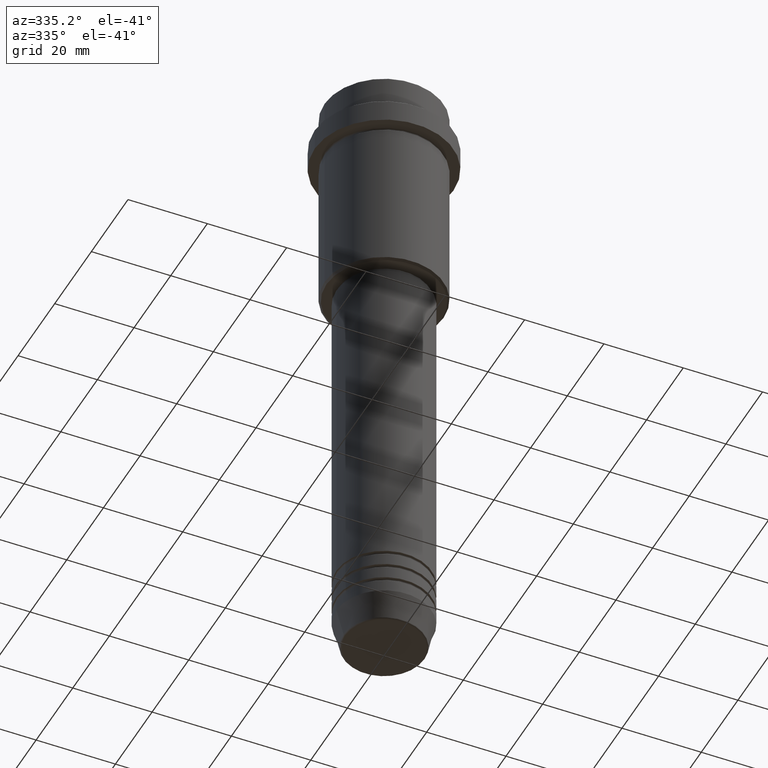
[diagram: clean part render]
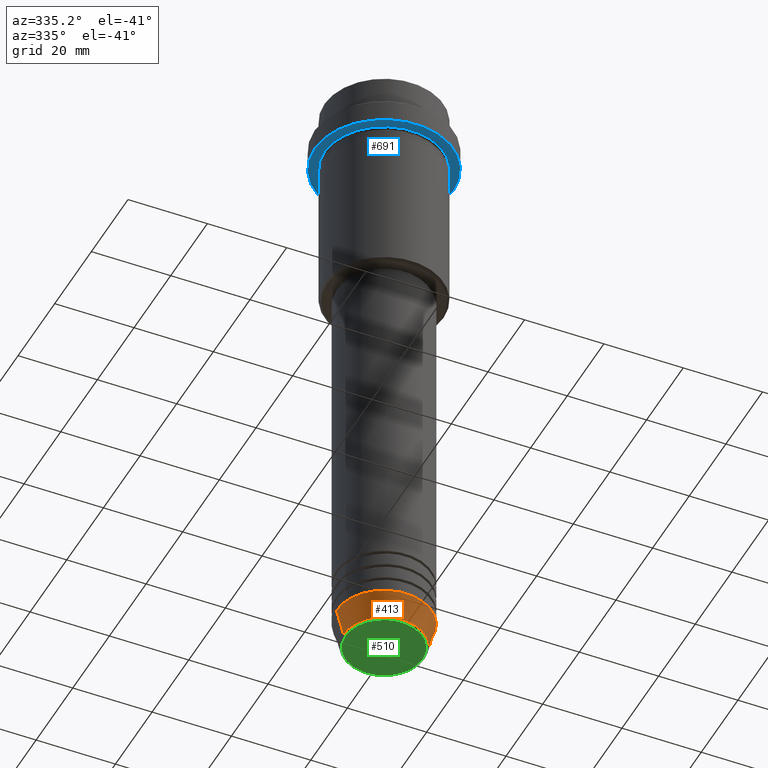
[diagram: same view with three faces highlighted in distinct colors, each labeled with its STEP entity id]
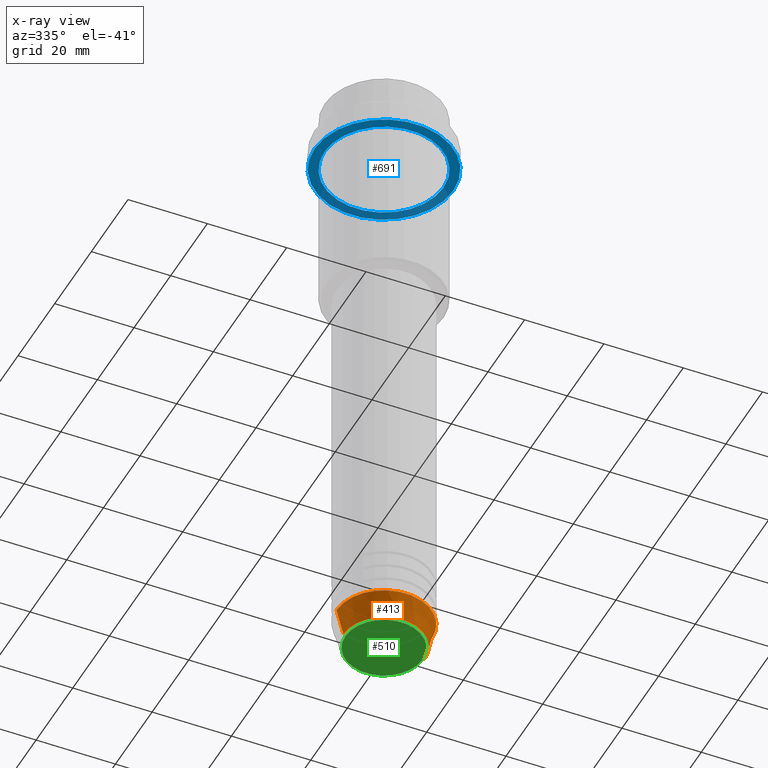
[diagram: x-ray of the same camera — body ghosted, the three highlighted faces saturated]
A machine part, auxiliary view with three faces highlighted in distinct colors.
The next image is the same camera in x-ray (body ghosted, the three faces saturated) — at least one of them is partly hidden behind the body in this view.
Their STEP definitions:

[orange] entity #413 — the highlighted conical surface has half-angle 15 deg.
#4 = EDGE_CURVE ( 'NONE', #1338, #1253, #1029, .T. ) ;
#51 = ORIENTED_EDGE ( 'NONE', *, *, #63, .T. ) ;
#63 = EDGE_CURVE ( 'NONE', #226, #335, #595, .T. ) ;
#83 = AXIS2_PLACEMENT_3D ( 'NONE', #1329, #1240, #573 ) ;
#153 = ORIENTED_EDGE ( 'NONE', *, *, #334, .T. ) ;
#221 = CARTESIAN_POINT ( 'NONE',  ( -12.00000000000000000, 1.469576158976823947E-15, -153.0000000000000000 ) ) ;
#226 = VERTEX_POINT ( 'NONE', #1036 ) ;
#334 = EDGE_CURVE ( 'NONE', #335, #1253, #1274, .T. ) ;
#335 = VERTEX_POINT ( 'NONE', #1267 ) ;
#375 = ORIENTED_EDGE ( 'NONE', *, *, #4, .F. ) ;
#400 = DIRECTION ( 'NONE',  ( 1.000000000000000000, 0.000000000000000000, 0.000000000000000000 ) ) ;
#413 = ADVANCED_FACE ( 'NONE', ( #1009 ), #713, .T. ) ;
#454 = VECTOR ( 'NONE', #1050, 1000.000000000000000 ) ;
#508 = DIRECTION ( 'NONE',  ( -0.000000000000000000, -0.000000000000000000, 1.000000000000000000 ) ) ;
#573 = DIRECTION ( 'NONE',  ( 1.000000000000000000, 0.000000000000000000, 0.000000000000000000 ) ) ;
#595 = CIRCLE ( 'NONE', #622, 10.22365507213719660 ) ;
#622 = AXIS2_PLACEMENT_3D ( 'NONE', #1069, #508, #400 ) ;
#663 = EDGE_CURVE ( 'NONE', #226, #1338, #990, .T. ) ;
#713 = CONICAL_SURFACE ( 'NONE', #940, 12.00000000000000000, 0.2617993877991500740 ) ;
#729 = ORIENTED_EDGE ( 'NONE', *, *, #663, .F. ) ;
#735 = CARTESIAN_POINT ( 'NONE',  ( 12.00000000000000000, 0.000000000000000000, -153.0000000000000000 ) ) ;
#751 = EDGE_LOOP ( 'NONE', ( #729, #51, #153, #375 ) ) ;
#798 = CARTESIAN_POINT ( 'NONE',  ( -12.00000000000000000, 1.469576158976823947E-15, -153.0000000000000000 ) ) ;
#816 = DIRECTION ( 'NONE',  ( -0.000000000000000000, -0.000000000000000000, 1.000000000000000000 ) ) ;
#823 = DIRECTION ( 'NONE',  ( 1.000000000000000000, 0.000000000000000000, 0.000000000000000000 ) ) ;
#921 = CARTESIAN_POINT ( 'NONE',  ( 0.000000000000000000, 0.000000000000000000, -153.0000000000000000 ) ) ;
#940 = AXIS2_PLACEMENT_3D ( 'NONE', #921, #816, #823 ) ;
#990 = LINE ( 'NONE', #221, #1413 ) ;
#1009 = FACE_OUTER_BOUND ( 'NONE', #751, .T. ) ;
#1029 = CIRCLE ( 'NONE', #83, 12.00000000000000000 ) ;
#1036 = CARTESIAN_POINT ( 'NONE',  ( -10.22365507213719837, 1.360806402472383336E-15, -159.6294095225512422 ) ) ;
#1050 = DIRECTION ( 'NONE',  ( 0.2588190451025213501, 0.000000000000000000, 0.9659258262890680902 ) ) ;
#1069 = CARTESIAN_POINT ( 'NONE',  ( 0.000000000000000000, 0.000000000000000000, -159.6294095225512422 ) ) ;
#1203 = DIRECTION ( 'NONE',  ( -0.2588190451025213501, 3.169619151431772337E-17, 0.9659258262890680902 ) ) ;
#1240 = DIRECTION ( 'NONE',  ( -0.000000000000000000, -0.000000000000000000, 1.000000000000000000 ) ) ;
#1253 = VERTEX_POINT ( 'NONE', #1292 ) ;
#1267 = CARTESIAN_POINT ( 'NONE',  ( 10.22365507213719660, 0.000000000000000000, -159.6294095225512422 ) ) ;
#1274 = LINE ( 'NONE', #735, #454 ) ;
#1292 = CARTESIAN_POINT ( 'NONE',  ( 12.00000000000000000, 0.000000000000000000, -153.0000000000000000 ) ) ;
#1329 = CARTESIAN_POINT ( 'NONE',  ( 0.000000000000000000, 0.000000000000000000, -153.0000000000000000 ) ) ;
#1338 = VERTEX_POINT ( 'NONE', #798 ) ;
#1413 = VECTOR ( 'NONE', #1203, 1000.000000000000000 ) ;

[blue] entity #691 — the highlighted planar face has unit normal (0, 0, -1).
#79 = DIRECTION ( 'NONE',  ( 1.000000000000000000, 0.000000000000000000, 0.000000000000000000 ) ) ;
#168 = EDGE_CURVE ( 'NONE', #446, #301, #177, .T. ) ;
#177 = CIRCLE ( 'NONE', #985, 14.99999999999999467 ) ;
#192 = CARTESIAN_POINT ( 'NONE',  ( 0.000000000000000000, 0.000000000000000000, -15.00000000000000000 ) ) ;
#219 = EDGE_CURVE ( 'NONE', #505, #393, #436, .T. ) ;
#255 = CARTESIAN_POINT ( 'NONE',  ( 14.99999999999999467, 1.836970198721029194E-15, -15.00000000000000000 ) ) ;
#301 = VERTEX_POINT ( 'NONE', #744 ) ;
#307 = CARTESIAN_POINT ( 'NONE',  ( 0.000000000000000000, 0.000000000000000000, -15.00000000000000000 ) ) ;
#368 = ORIENTED_EDGE ( 'NONE', *, *, #1257, .T. ) ;
#373 = CARTESIAN_POINT ( 'NONE',  ( 0.000000000000000000, 0.000000000000000000, -15.00000000000000000 ) ) ;
#393 = VERTEX_POINT ( 'NONE', #1327 ) ;
#421 = DIRECTION ( 'NONE',  ( -0.000000000000000000, -0.000000000000000000, 1.000000000000000000 ) ) ;
#436 = CIRCLE ( 'NONE', #825, 17.50000000000000000 ) ;
#446 = VERTEX_POINT ( 'NONE', #255 ) ;
#447 = FACE_BOUND ( 'NONE', #1201, .T. ) ;
#463 = DIRECTION ( 'NONE',  ( -0.000000000000000000, -0.000000000000000000, 1.000000000000000000 ) ) ;
#482 = AXIS2_PLACEMENT_3D ( 'NONE', #307, #727, #1163 ) ;
#505 = VERTEX_POINT ( 'NONE', #796 ) ;
#543 = FACE_OUTER_BOUND ( 'NONE', #575, .T. ) ;
#575 = EDGE_LOOP ( 'NONE', ( #774, #1220 ) ) ;
#691 = ADVANCED_FACE ( 'NONE', ( #447, #543 ), #868, .T. ) ;
#727 = DIRECTION ( 'NONE',  ( -0.000000000000000000, -0.000000000000000000, 1.000000000000000000 ) ) ;
#744 = CARTESIAN_POINT ( 'NONE',  ( -14.99999999999999467, 0.000000000000000000, -15.00000000000000000 ) ) ;
#774 = ORIENTED_EDGE ( 'NONE', *, *, #1229, .F. ) ;
#796 = CARTESIAN_POINT ( 'NONE',  ( -17.50000000000000000, 2.143131898507868248E-15, -15.00000000000000000 ) ) ;
#800 = CARTESIAN_POINT ( 'NONE',  ( 0.000000000000000000, 0.000000000000000000, -15.00000000000000000 ) ) ;
#811 = DIRECTION ( 'NONE',  ( -0.000000000000000000, -0.000000000000000000, 1.000000000000000000 ) ) ;
#825 = AXIS2_PLACEMENT_3D ( 'NONE', #800, #811, #1228 ) ;
#868 = PLANE ( 'NONE',  #1034 ) ;
#878 = ORIENTED_EDGE ( 'NONE', *, *, #168, .T. ) ;
#879 = DIRECTION ( 'NONE',  ( 0.000000000000000000, 0.000000000000000000, -1.000000000000000000 ) ) ;
#916 = AXIS2_PLACEMENT_3D ( 'NONE', #192, #421, #79 ) ;
#985 = AXIS2_PLACEMENT_3D ( 'NONE', #373, #463, #1365 ) ;
#1003 = CARTESIAN_POINT ( 'NONE',  ( 0.000000000000000000, 17.50000000000000000, -15.00000000000000000 ) ) ;
#1034 = AXIS2_PLACEMENT_3D ( 'NONE', #1003, #879, #1298 ) ;
#1121 = CIRCLE ( 'NONE', #482, 14.99999999999999467 ) ;
#1163 = DIRECTION ( 'NONE',  ( -1.000000000000000000, 0.000000000000000000, 0.000000000000000000 ) ) ;
#1200 = CIRCLE ( 'NONE', #916, 17.50000000000000000 ) ;
#1201 = EDGE_LOOP ( 'NONE', ( #368, #878 ) ) ;
#1220 = ORIENTED_EDGE ( 'NONE', *, *, #219, .F. ) ;
#1228 = DIRECTION ( 'NONE',  ( 1.000000000000000000, 0.000000000000000000, 0.000000000000000000 ) ) ;
#1229 = EDGE_CURVE ( 'NONE', #393, #505, #1200, .T. ) ;
#1257 = EDGE_CURVE ( 'NONE', #301, #446, #1121, .T. ) ;
#1298 = DIRECTION ( 'NONE',  ( -1.000000000000000000, 0.000000000000000000, -0.000000000000000000 ) ) ;
#1327 = CARTESIAN_POINT ( 'NONE',  ( 17.50000000000000000, 0.000000000000000000, -15.00000000000000000 ) ) ;
#1365 = DIRECTION ( 'NONE',  ( -1.000000000000000000, 0.000000000000000000, 0.000000000000000000 ) ) ;

[green] entity #510 — the highlighted planar face has unit normal (0, -0, 1).
#42 = CARTESIAN_POINT ( 'NONE',  ( 0.000000000000000000, 0.000000000000000000, -159.9999999999999716 ) ) ;
#118 = CARTESIAN_POINT ( 'NONE',  ( 0.000000000000000000, 0.000000000000000000, -159.9999999999999716 ) ) ;
#126 = CIRCLE ( 'NONE', #1149, 9.740692158992667160 ) ;
#146 = FACE_OUTER_BOUND ( 'NONE', #1193, .T. ) ;
#382 = VERTEX_POINT ( 'NONE', #1283 ) ;
#510 = ADVANCED_FACE ( 'NONE', ( #146 ), #1033, .F. ) ;
#542 = VERTEX_POINT ( 'NONE', #1279 ) ;
#567 = DIRECTION ( 'NONE',  ( 0.000000000000000000, 0.000000000000000000, -1.000000000000000000 ) ) ;
#645 = CARTESIAN_POINT ( 'NONE',  ( 0.000000000000000000, 0.000000000000000000, -159.9999999999999716 ) ) ;
#659 = DIRECTION ( 'NONE',  ( 1.000000000000000000, 0.000000000000000000, 0.000000000000000000 ) ) ;
#684 = DIRECTION ( 'NONE',  ( 1.000000000000000000, 0.000000000000000000, 0.000000000000000000 ) ) ;
#758 = AXIS2_PLACEMENT_3D ( 'NONE', #42, #1358, #684 ) ;
#962 = DIRECTION ( 'NONE',  ( 0.000000000000000000, 0.000000000000000000, -1.000000000000000000 ) ) ;
#977 = ORIENTED_EDGE ( 'NONE', *, *, #1106, .T. ) ;
#1033 = PLANE ( 'NONE',  #758 ) ;
#1066 = DIRECTION ( 'NONE',  ( 1.000000000000000000, 0.000000000000000000, 0.000000000000000000 ) ) ;
#1096 = CIRCLE ( 'NONE', #1325, 9.740692158992667160 ) ;
#1106 = EDGE_CURVE ( 'NONE', #382, #542, #126, .T. ) ;
#1149 = AXIS2_PLACEMENT_3D ( 'NONE', #118, #567, #659 ) ;
#1193 = EDGE_LOOP ( 'NONE', ( #977, #1363 ) ) ;
#1239 = EDGE_CURVE ( 'NONE', #542, #382, #1096, .T. ) ;
#1279 = CARTESIAN_POINT ( 'NONE',  ( -9.740692158992667160, 1.222463696683475393E-15, -159.9999999999999716 ) ) ;
#1283 = CARTESIAN_POINT ( 'NONE',  ( 9.740692158992667160, 0.000000000000000000, -159.9999999999999716 ) ) ;
#1325 = AXIS2_PLACEMENT_3D ( 'NONE', #645, #962, #1066 ) ;
#1358 = DIRECTION ( 'NONE',  ( 0.000000000000000000, -0.000000000000000000, 1.000000000000000000 ) ) ;
#1363 = ORIENTED_EDGE ( 'NONE', *, *, #1239, .T. ) ;